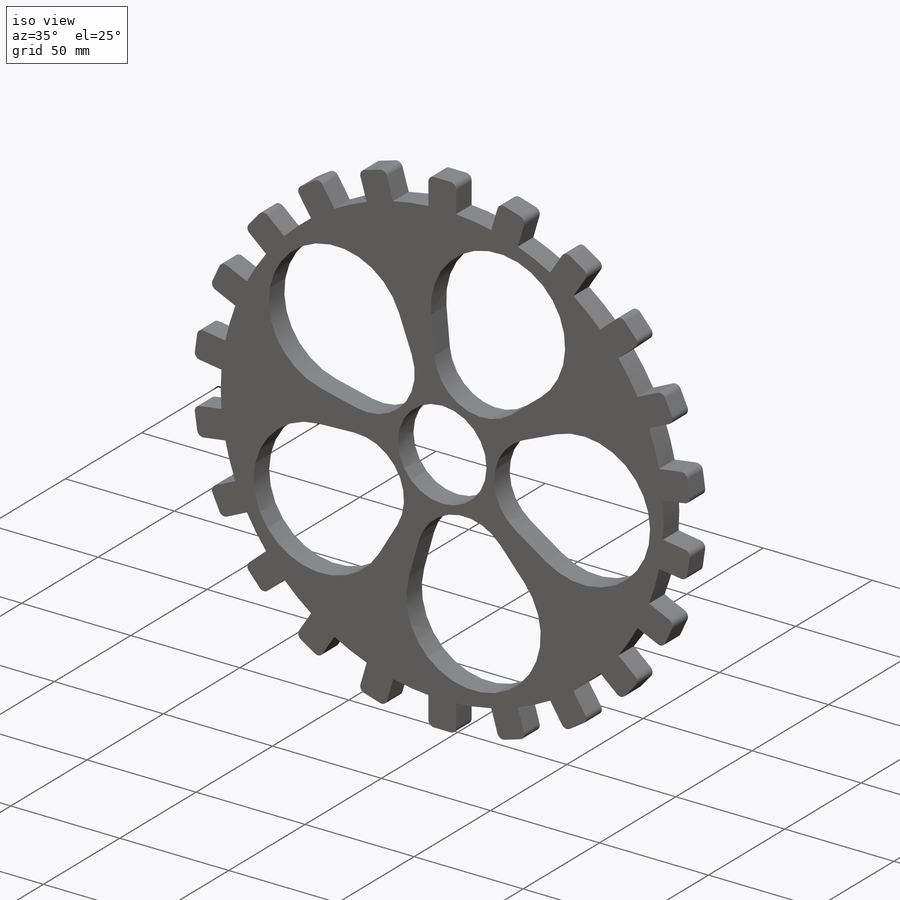
[diagram: iso view]
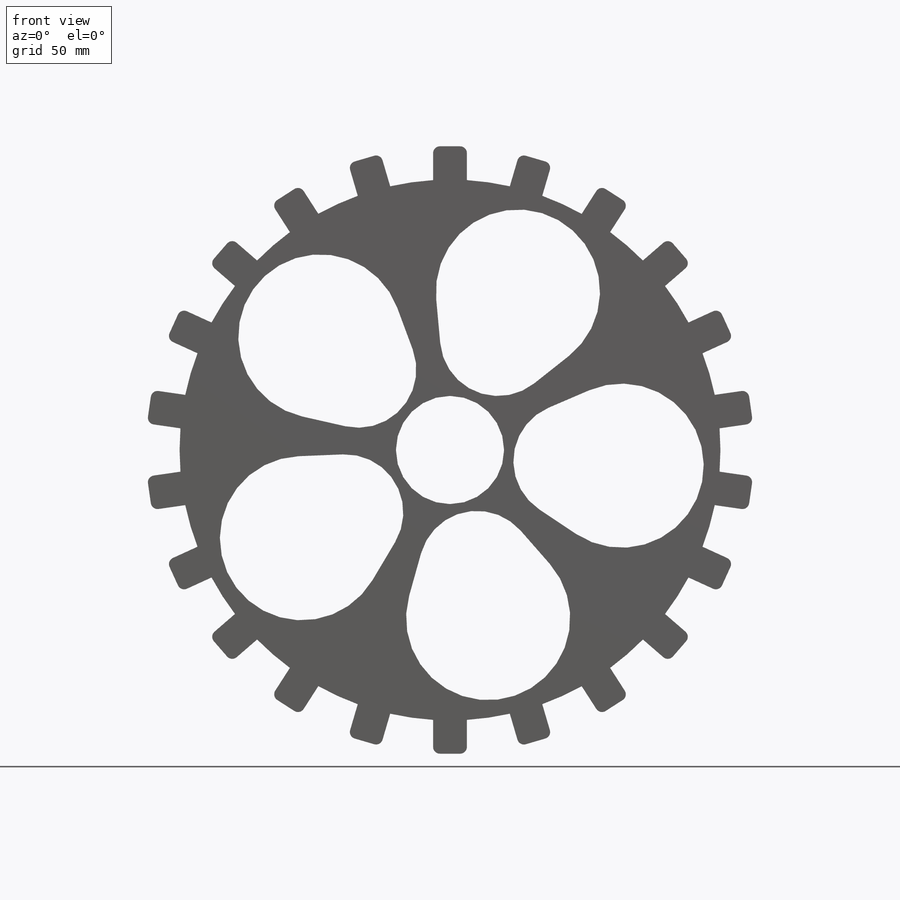
[diagram: front view]
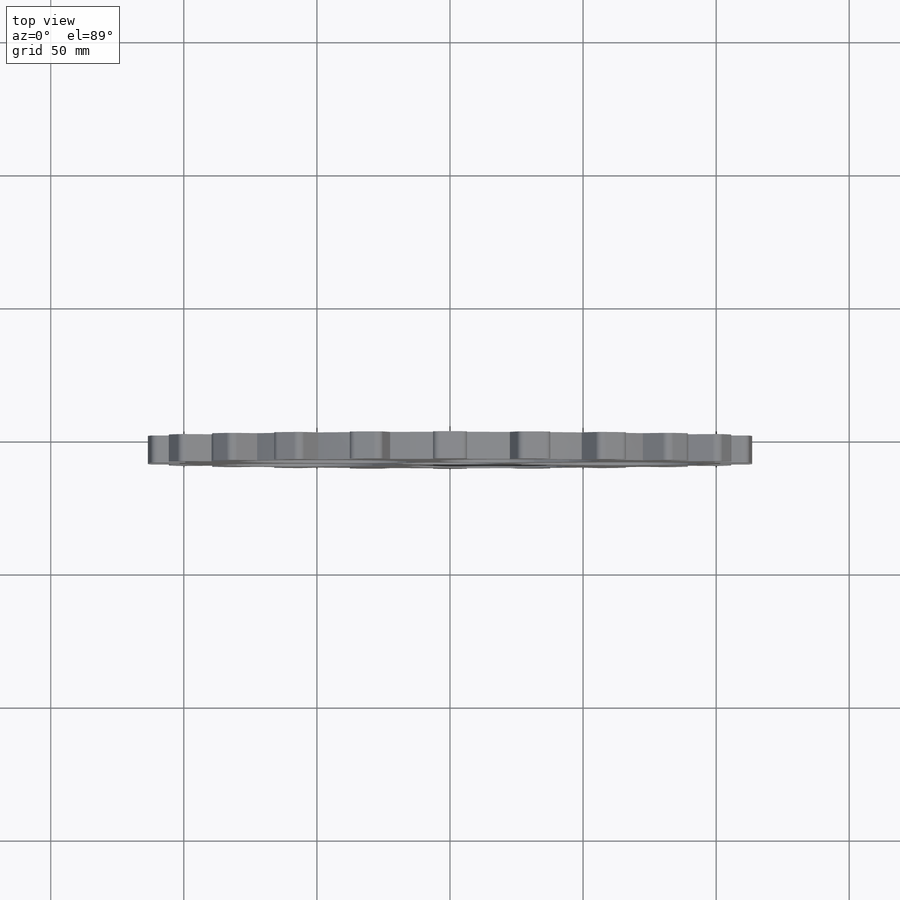
[diagram: top view]
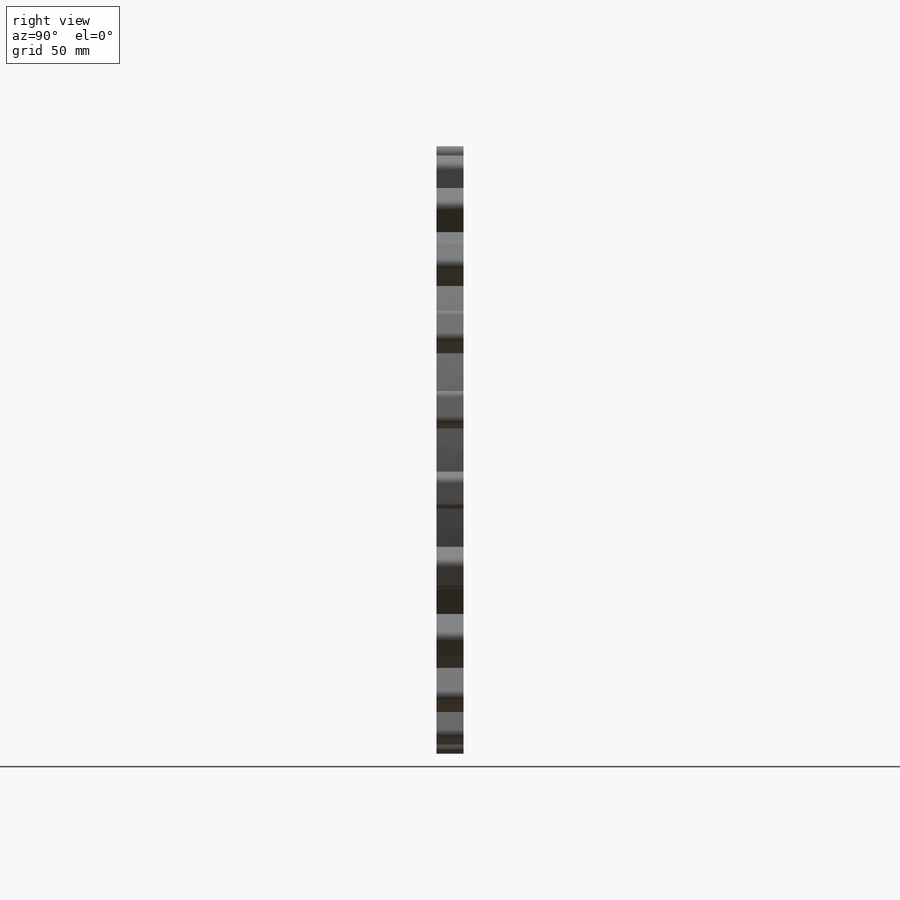
[diagram: right view]
SOLIDWORKS PART (.sldprt)
format: sldprt  version: not decoded by parser v0  size: 716,800 bytes
history: native  units: mm
features: sketch x3, cut_extrude x2, material x1, extrude x1 (+13 scaffold rows collapsed)
feature tree (20):
  scaffold x13  (default folders/planes/origin — collapsed)
  material  "Material <not specified>"
  sketch  "Sketch1"  dims[D1=203.2mm D5=40.64mm D6=2.54mm D2=12.7mm D3=12.7mm D4=22.0]
  extrude  "Boss-Extrude1"  Depth=10.16mm
  sketch  "Sketch5"  dims[D1=~59.638233mm]
  cut_extrude  "Cut-Extrude1"  Depth=10.16mm
  sketch  "Sketch7"  dims[D1=5.0]
  cut_extrude  "Cut-Extrude2"  Depth=10.16mm
decode coverage: 6 of 6 modeling features carry decoded parameters
note: ~ marks probable driven/reference dimensions
note: suppression state not decoded; provenance and decode notes live in map.json
